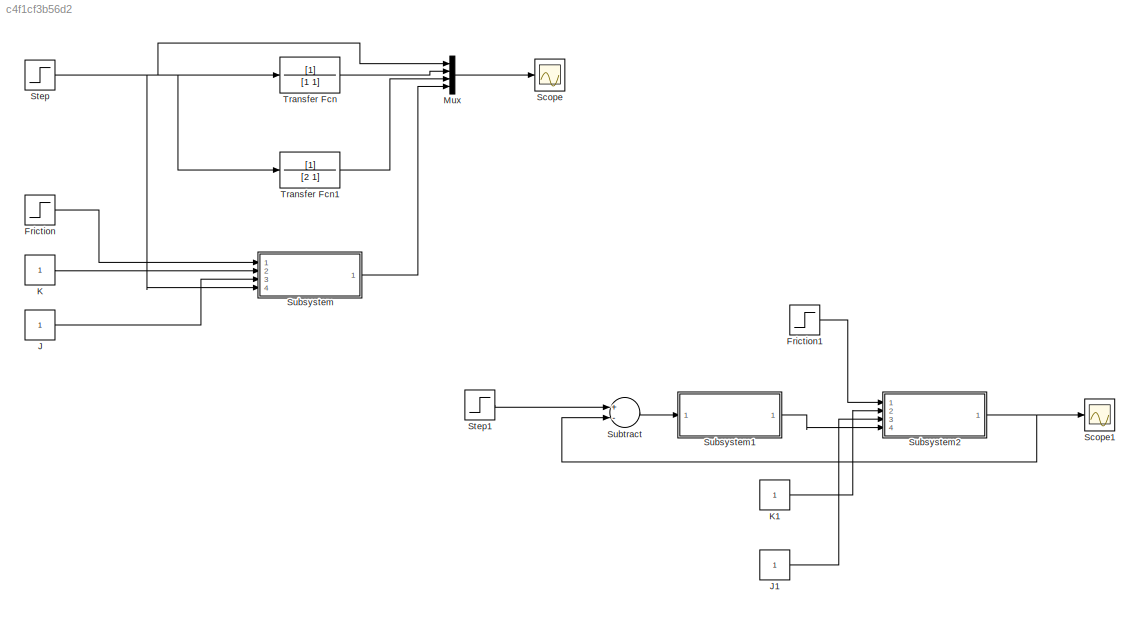
MODEL slx_c4f1cf3b56d2
KIND model
CONFIG AbsTol = auto
CONFIG EnableMultiTasking = off
CONFIG FixedStep = auto
CONFIG MaxStep = auto
CONFIG MinStep = auto
CONFIG RelTol = 1e-3
CONFIG SampleTimeConstraint = Unconstrained
CONFIG Solver = VariableStepAuto
CONFIG SolverName = VariableStepAuto
CONFIG StartTime = 0.0
CONFIG StopTime = 10.0
BLOCK [Step] Friction
  SampleTime = 0
  Time = 5
BLOCK [Step] Friction1
  SampleTime = 0
BLOCK [Constant] J
BLOCK [Constant] J1
BLOCK [Constant] K
BLOCK [Constant] K1
BLOCK [Mux] Mux
  DisplayOption = bar
  Ports = [4, 1]
BLOCK [Scope] Scope
  NumInputPorts = 1
  Ports = [1]
  ScopeSpecificationString = Simulink.scopes.TimeScopeBlockCfg('CurrentConfiguration', extmgr.ConfigurationSet(extmgr.Configuration('Core','General UI',true),extmgr.Configuration('Core','Source UI',true),extmgr.Configuration('Sources','WiredSimulink',true),extmgr.Configuration('Visuals','Time Domain',true,'SerializedDisplays',{struct('MinYLimReal','-0.125','MaxYLimReal','1.125','YLabelReal','','MinYLimMag','0.00000','MaxYLimM...<+1384ch>
BLOCK [Scope] Scope1
  NumInputPorts = 1
  Ports = [1]
  ScopeSpecificationString = Simulink.scopes.TimeScopeBlockCfg('CurrentConfiguration', extmgr.ConfigurationSet(extmgr.Configuration('Core','General UI',true),extmgr.Configuration('Core','Source UI',true),extmgr.Configuration('Sources','WiredSimulink',true,'DataLoggingVariableName','ScopeData1'),extmgr.Configuration('Visuals','Time Domain',true,'SerializedDisplays',{struct('MinYLimReal','-0.08929','MaxYLimReal','0.80357','YLab...<+1397ch>
BLOCK [Step] Step
  SampleTime = 0
BLOCK [Step] Step1
  SampleTime = 0
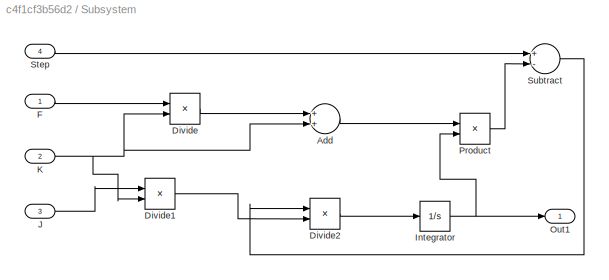
BLOCK [SubSystem] Subsystem
  Ports = [4, 1]
  RequestExecContextInheritance = off
  Variant = off
BLOCK [Sum] Subsystem/Add
  InputSameDT = off
  OutDataTypeStr = Inherit: Inherit via internal rule
  Ports = [2, 1]
  SaturateOnIntegerOverflow = off
BLOCK [Product] Subsystem/Divide
  InputSameDT = off
  Inputs = */
  OutDataTypeStr = Inherit: Inherit via internal rule
  Ports = [2, 1]
  RndMeth = Floor
  SaturateOnIntegerOverflow = off
BLOCK [Product] Subsystem/Divide1
  InputSameDT = off
  Inputs = */
  OutDataTypeStr = Inherit: Inherit via internal rule
  Ports = [2, 1]
  RndMeth = Floor
  SaturateOnIntegerOverflow = off
BLOCK [Product] Subsystem/Divide2
  InputSameDT = off
  Inputs = */
  OutDataTypeStr = Inherit: Inherit via internal rule
  Ports = [2, 1]
  RndMeth = Floor
  SaturateOnIntegerOverflow = off
BLOCK [Inport] Subsystem/F
  IconDisplay = Port number
BLOCK [Integrator] Subsystem/Integrator
  Ports = [1, 1]
BLOCK [Inport] Subsystem/J
  IconDisplay = Port number
  Port = 3
BLOCK [Inport] Subsystem/K
  IconDisplay = Port number
  Port = 2
BLOCK [Outport] Subsystem/Out1
  IconDisplay = Port number
BLOCK [Product] Subsystem/Product
  InputSameDT = off
  OutDataTypeStr = Inherit: Inherit via internal rule
  Ports = [2, 1]
  RndMeth = Floor
  SaturateOnIntegerOverflow = off
BLOCK [Inport] Subsystem/Step
  IconDisplay = Port number
  Port = 4
BLOCK [Sum] Subsystem/Subtract
  InputSameDT = off
  Inputs = +-
  OutDataTypeStr = Inherit: Inherit via internal rule
  Ports = [2, 1]
  SaturateOnIntegerOverflow = off
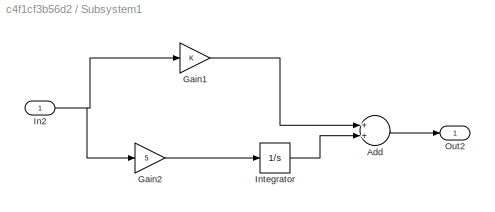
BLOCK [SubSystem] Subsystem1
  Ports = [1, 1]
  RequestExecContextInheritance = off
  Variant = off
BLOCK [Sum] Subsystem1/Add
  InputSameDT = off
  OutDataTypeStr = Inherit: Inherit via internal rule
  Ports = [2, 1]
  SaturateOnIntegerOverflow = off
BLOCK [Gain] Subsystem1/Gain1
  OutDataTypeStr = Inherit: Inherit via internal rule
  ParamDataTypeStr = Inherit: Inherit via internal rule
  SaturateOnIntegerOverflow = off
BLOCK [Gain] Subsystem1/Gain2
  Gain = 5
  OutDataTypeStr = Inherit: Inherit via internal rule
  ParamDataTypeStr = Inherit: Inherit via internal rule
  SaturateOnIntegerOverflow = off
BLOCK [Inport] Subsystem1/In2
  IconDisplay = Port number
BLOCK [Integrator] Subsystem1/Integrator
  Ports = [1, 1]
BLOCK [Outport] Subsystem1/Out2
  IconDisplay = Port number
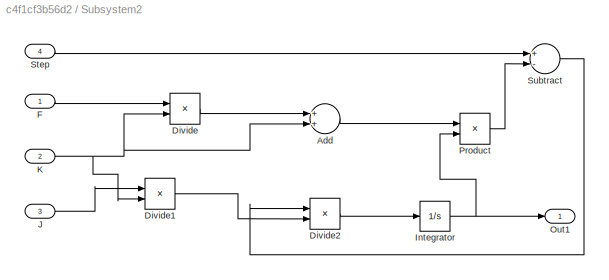
BLOCK [SubSystem] Subsystem2
  Ports = [4, 1]
  RequestExecContextInheritance = off
  Variant = off
BLOCK [Sum] Subsystem2/Add
  InputSameDT = off
  OutDataTypeStr = Inherit: Inherit via internal rule
  Ports = [2, 1]
  SaturateOnIntegerOverflow = off
BLOCK [Product] Subsystem2/Divide
  InputSameDT = off
  Inputs = */
  OutDataTypeStr = Inherit: Inherit via internal rule
  Ports = [2, 1]
  RndMeth = Floor
  SaturateOnIntegerOverflow = off
BLOCK [Product] Subsystem2/Divide1
  InputSameDT = off
  Inputs = */
  OutDataTypeStr = Inherit: Inherit via internal rule
  Ports = [2, 1]
  RndMeth = Floor
  SaturateOnIntegerOverflow = off
BLOCK [Product] Subsystem2/Divide2
  InputSameDT = off
  Inputs = */
  OutDataTypeStr = Inherit: Inherit via internal rule
  Ports = [2, 1]
  RndMeth = Floor
  SaturateOnIntegerOverflow = off
BLOCK [Inport] Subsystem2/F
  IconDisplay = Port number
BLOCK [Integrator] Subsystem2/Integrator
  Ports = [1, 1]
BLOCK [Inport] Subsystem2/J
  IconDisplay = Port number
  Port = 3
BLOCK [Inport] Subsystem2/K
  IconDisplay = Port number
  Port = 2
BLOCK [Outport] Subsystem2/Out1
  IconDisplay = Port number
BLOCK [Product] Subsystem2/Product
  InputSameDT = off
  OutDataTypeStr = Inherit: Inherit via internal rule
  Ports = [2, 1]
  RndMeth = Floor
  SaturateOnIntegerOverflow = off
BLOCK [Inport] Subsystem2/Step
  IconDisplay = Port number
  Port = 4
BLOCK [Sum] Subsystem2/Subtract
  InputSameDT = off
  Inputs = +-
  OutDataTypeStr = Inherit: Inherit via internal rule
  Ports = [2, 1]
  SaturateOnIntegerOverflow = off
BLOCK [Sum] Subtract
  InputSameDT = off
  Inputs = +-
  OutDataTypeStr = Inherit: Inherit via internal rule
  Ports = [2, 1]
  SaturateOnIntegerOverflow = off
BLOCK [TransferFcn] Transfer Fcn
  Denominator = [1 1]
BLOCK [TransferFcn] Transfer Fcn1
  Denominator = [2 1]
LINE Friction1:1 -> Subsystem2:1
LINE Friction:1 -> Subsystem:1
LINE J1:1 -> Subsystem2:3
LINE J:1 -> Subsystem:3
LINE K1:1 -> Subsystem2:2
LINE K:1 -> Subsystem:2
LINE Mux:1 -> Scope:1
LINE Step1:1 -> Subtract:1
NET Step:1 -> Mux:1, Subsystem:4, Transfer Fcn1:1, Transfer Fcn:1
LINE Subsystem/Add:1 -> Subsystem/Product:1
LINE Subsystem/Divide1:1 -> Subsystem/Divide2:2
LINE Subsystem/Divide2:1 -> Subsystem/Integrator:1
LINE Subsystem/Divide:1 -> Subsystem/Add:1
LINE Subsystem/F:1 -> Subsystem/Divide:1
NET Subsystem/Integrator:1 -> Subsystem/Out1:1, Subsystem/Product:2
LINE Subsystem/J:1 -> Subsystem/Divide1:1
NET Subsystem/K:1 -> Subsystem/Add:2, Subsystem/Divide1:2, Subsystem/Divide:2
LINE Subsystem/Product:1 -> Subsystem/Subtract:2
LINE Subsystem/Step:1 -> Subsystem/Subtract:1
LINE Subsystem/Subtract:1 -> Subsystem/Divide2:1
LINE Subsystem1/Add:1 -> Subsystem1/Out2:1
LINE Subsystem1/Gain1:1 -> Subsystem1/Add:1
LINE Subsystem1/Gain2:1 -> Subsystem1/Integrator:1
NET Subsystem1/In2:1 -> Subsystem1/Gain1:1, Subsystem1/Gain2:1
LINE Subsystem1/Integrator:1 -> Subsystem1/Add:2
LINE Subsystem1:1 -> Subsystem2:4
LINE Subsystem2/Add:1 -> Subsystem2/Product:1
LINE Subsystem2/Divide1:1 -> Subsystem2/Divide2:2
LINE Subsystem2/Divide2:1 -> Subsystem2/Integrator:1
LINE Subsystem2/Divide:1 -> Subsystem2/Add:1
LINE Subsystem2/F:1 -> Subsystem2/Divide:1
NET Subsystem2/Integrator:1 -> Subsystem2/Out1:1, Subsystem2/Product:2
LINE Subsystem2/J:1 -> Subsystem2/Divide1:1
NET Subsystem2/K:1 -> Subsystem2/Add:2, Subsystem2/Divide1:2, Subsystem2/Divide:2
LINE Subsystem2/Product:1 -> Subsystem2/Subtract:2
LINE Subsystem2/Step:1 -> Subsystem2/Subtract:1
LINE Subsystem2/Subtract:1 -> Subsystem2/Divide2:1
NET Subsystem2:1 -> Scope1:1, Subtract:2
LINE Subsystem:1 -> Mux:4
LINE Subtract:1 -> Subsystem1:1
LINE Transfer Fcn1:1 -> Mux:3
LINE Transfer Fcn:1 -> Mux:2
note: NET lines group one-source signal fan-out (src -> all destinations, sorted); 1:1 wires keep LINE
